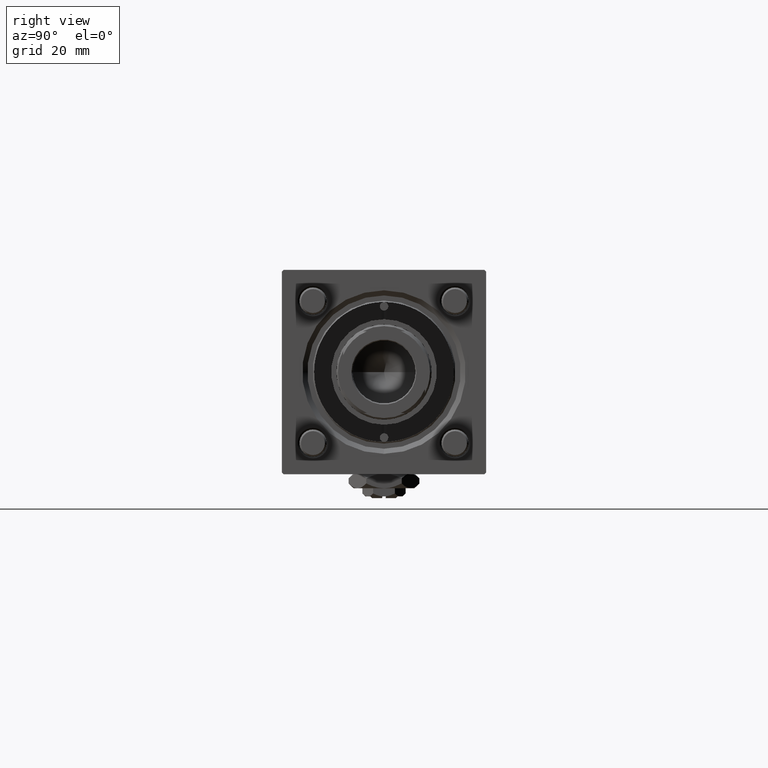
[diagram: clean part render]
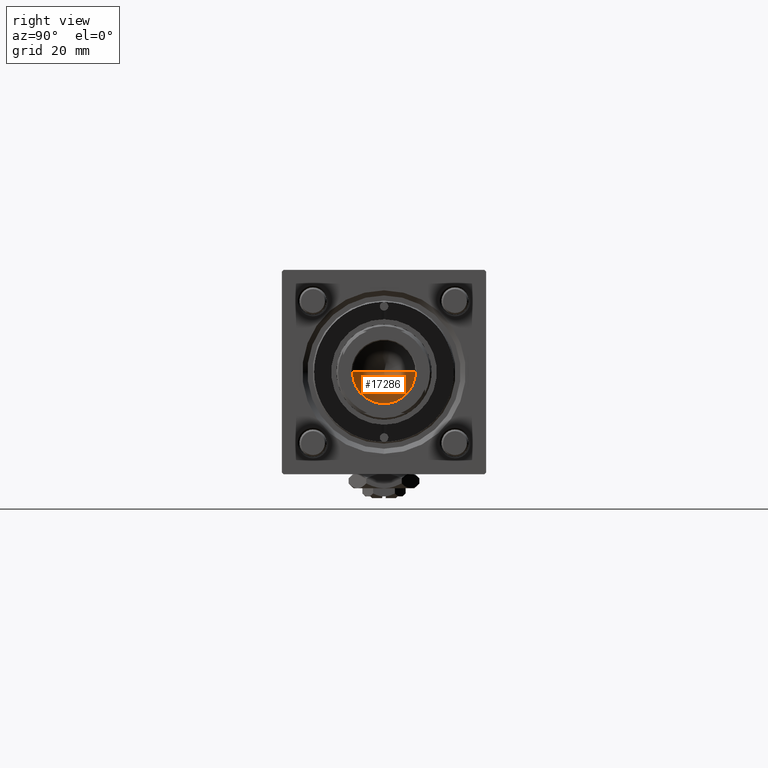
[diagram: same view with one face highlighted and labeled with its STEP entity id]
A machine part, right view. The second image highlights one B-rep face of the part: STEP entity #17286.
In plain terms, the highlighted conical surface has half-angle 59 deg.
Its self-contained STEP definition (entity closure, byte-faithful):
#163 = CARTESIAN_POINT ( 'NONE',  ( -9.249999999999992895, 1.132798289211300712E-15, 101.0000000000000000 ) ) ;
#503 = VECTOR ( 'NONE', #6639, 1000.000000000000000 ) ;
#2202 = ORIENTED_EDGE ( 'NONE', *, *, #25322, .F. ) ;
#6639 = DIRECTION ( 'NONE',  ( -0.8571673007021117785, 1.049727191138617956E-16, 0.5150380749100550437 ) ) ;
#7212 = CARTESIAN_POINT ( 'NONE',  ( -9.769621978240258809E-15, 0.000000000000000000, 95.44203927399506426 ) ) ;
#8356 = DIRECTION ( 'NONE',  ( -0.000000000000000000, -0.000000000000000000, 1.000000000000000000 ) ) ;
#10227 = LINE ( 'NONE', #19691, #503 ) ;
#11336 = CIRCLE ( 'NONE', #49256, 9.249999999999992895 ) ;
#11914 = CARTESIAN_POINT ( 'NONE',  ( 0.000000000000000000, 0.000000000000000000, 101.0000000000000000 ) ) ;
#13156 = CONICAL_SURFACE ( 'NONE', #37797, 9.249999999999992895, 1.029744258676653423 ) ;
#16648 = DIRECTION ( 'NONE',  ( -0.000000000000000000, -0.000000000000000000, 1.000000000000000000 ) ) ;
#17286 = ADVANCED_FACE ( 'NONE', ( #43948 ), #13156, .F. ) ;
#18783 = VERTEX_POINT ( 'NONE', #163 ) ;
#19691 = CARTESIAN_POINT ( 'NONE',  ( -9.249999999999992895, 1.132798289211300712E-15, 101.0000000000000000 ) ) ;
#21962 = VERTEX_POINT ( 'NONE', #33769 ) ;
#24297 = EDGE_LOOP ( 'NONE', ( #2202, #25574, #56319 ) ) ;
#25322 = EDGE_CURVE ( 'NONE', #56748, #18783, #10227, .T. ) ;
#25574 = ORIENTED_EDGE ( 'NONE', *, *, #30636, .T. ) ;
#26415 = DIRECTION ( 'NONE',  ( 1.000000000000000000, 0.000000000000000000, 0.000000000000000000 ) ) ;
#26708 = CARTESIAN_POINT ( 'NONE',  ( 0.000000000000000000, 0.000000000000000000, 101.0000000000000000 ) ) ;
#30636 = EDGE_CURVE ( 'NONE', #56748, #21962, #36723, .T. ) ;
#32579 = DIRECTION ( 'NONE',  ( 0.8571673007021117785, 0.000000000000000000, 0.5150380749100550437 ) ) ;
#33769 = CARTESIAN_POINT ( 'NONE',  ( 9.249999999999992895, 0.000000000000000000, 101.0000000000000000 ) ) ;
#36723 = LINE ( 'NONE', #37609, #53720 ) ;
#37609 = CARTESIAN_POINT ( 'NONE',  ( 9.249999999999992895, 0.000000000000000000, 101.0000000000000000 ) ) ;
#37797 = AXIS2_PLACEMENT_3D ( 'NONE', #11914, #16648, #43075 ) ;
#43075 = DIRECTION ( 'NONE',  ( 1.000000000000000000, 0.000000000000000000, 0.000000000000000000 ) ) ;
#43147 = EDGE_CURVE ( 'NONE', #21962, #18783, #11336, .T. ) ;
#43948 = FACE_OUTER_BOUND ( 'NONE', #24297, .T. ) ;
#49256 = AXIS2_PLACEMENT_3D ( 'NONE', #26708, #8356, #26415 ) ;
#53720 = VECTOR ( 'NONE', #32579, 1000.000000000000000 ) ;
#56319 = ORIENTED_EDGE ( 'NONE', *, *, #43147, .T. ) ;
#56748 = VERTEX_POINT ( 'NONE', #7212 ) ;